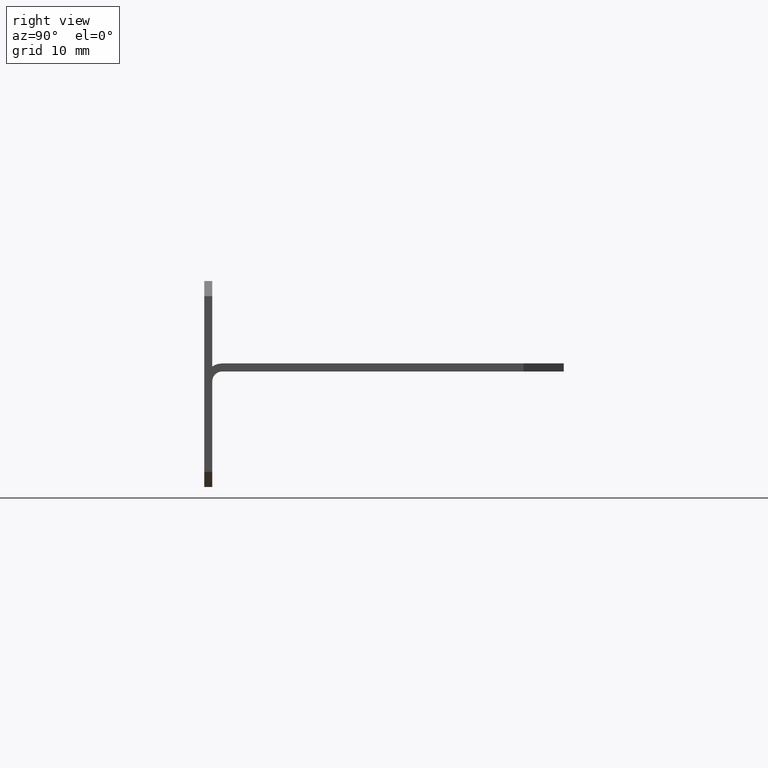
[diagram: clean part render]
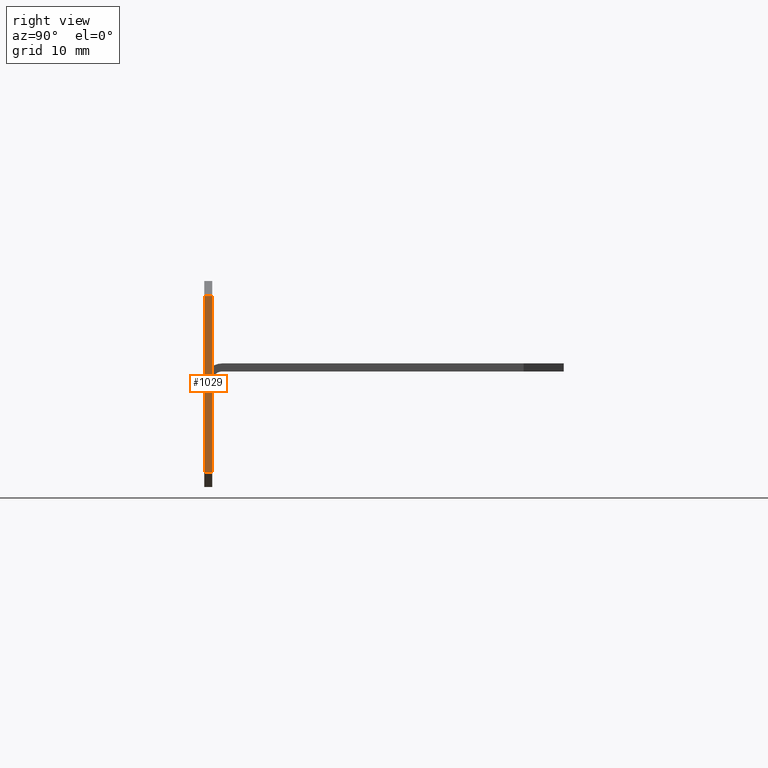
[diagram: same view with one face highlighted and labeled with its STEP entity id]
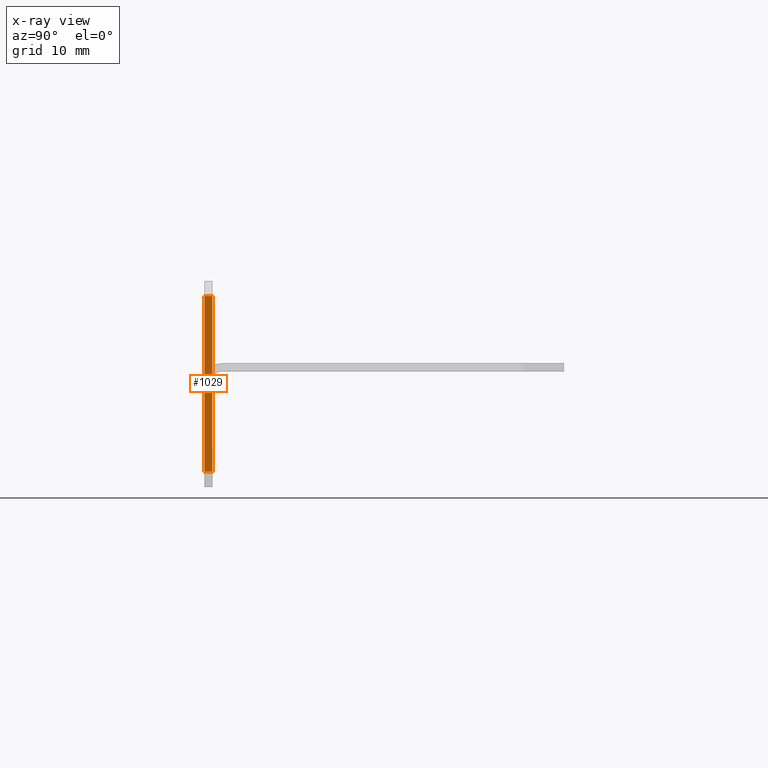
[diagram: x-ray of the same camera — body ghosted, the highlighted face saturated]
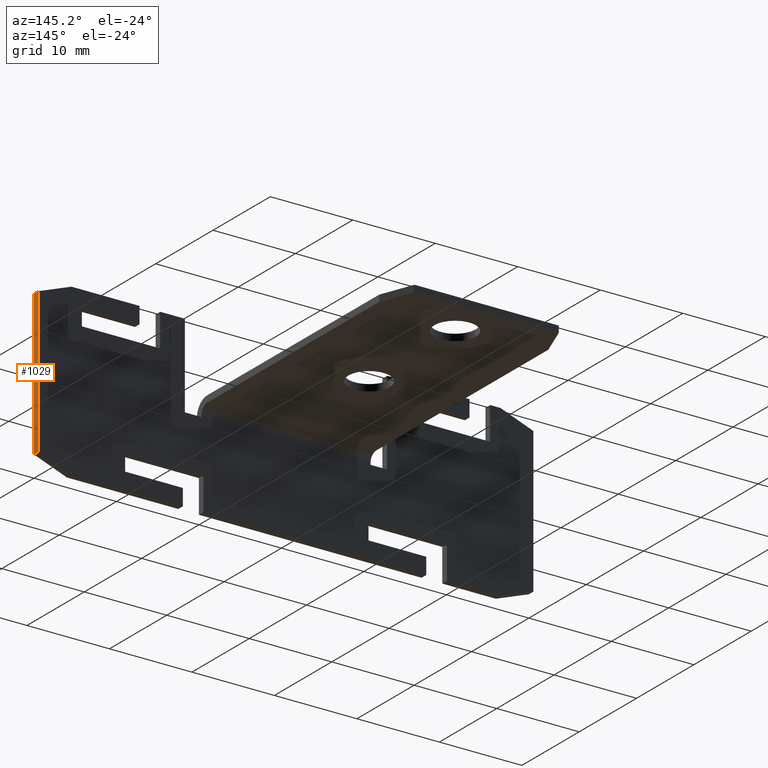
[diagram: same view with one face highlighted and labeled with its STEP entity id]
A machine part, right view. The second image highlights one B-rep face of the part: STEP entity #1029.
The next image is the same camera in x-ray: the body ghosted, the highlighted face saturated — about 0% of this face is hidden behind the body in this view.
A second angle (auxiliary view) of the same face is appended — the face is thin or edge-on in the first view.
In plain terms, the highlighted planar face has unit normal (1, 0, 0).
Its self-contained STEP definition (entity closure, byte-faithful):
#79=FACE_OUTER_BOUND('',#133,.T.);
#133=EDGE_LOOP('',(#927,#928,#929,#930));
#220=LINE('',#1540,#356);
#262=LINE('',#1640,#398);
#267=LINE('',#1648,#403);
#269=LINE('',#1651,#405);
#356=VECTOR('',#1245,10.);
#398=VECTOR('',#1343,10.);
#403=VECTOR('',#1352,10.);
#405=VECTOR('',#1356,10.);
#470=VERTEX_POINT('',#1537);
#471=VERTEX_POINT('',#1539);
#500=VERTEX_POINT('',#1637);
#501=VERTEX_POINT('',#1639);
#588=EDGE_CURVE('',#470,#471,#220,.T.);
#638=EDGE_CURVE('',#500,#501,#262,.T.);
#643=EDGE_CURVE('',#500,#471,#267,.T.);
#645=EDGE_CURVE('',#470,#501,#269,.T.);
#927=ORIENTED_EDGE('',*,*,#643,.T.);
#928=ORIENTED_EDGE('',*,*,#588,.F.);
#929=ORIENTED_EDGE('',*,*,#645,.T.);
#930=ORIENTED_EDGE('',*,*,#638,.F.);
#979=PLANE('',#1110);
#1029=ADVANCED_FACE('',(#79),#979,.T.);
#1110=AXIS2_PLACEMENT_3D('',#1655,#1362,#1363);
#1245=DIRECTION('',(0.,0.,1.));
#1343=DIRECTION('',(0.,0.,-1.));
#1352=DIRECTION('',(0.,-1.,0.));
#1356=DIRECTION('',(0.,1.,0.));
#1362=DIRECTION('center_axis',(1.,0.,0.));
#1363=DIRECTION('ref_axis',(0.,0.,-1.));
#1537=CARTESIAN_POINT('',(30.,-7.7715611723761E-15,-8.75));
#1539=CARTESIAN_POINT('',(30.,-7.7715611723761E-15,8.75));
#1540=CARTESIAN_POINT('',(30.,-7.7715611723761E-15,0.));
#1637=CARTESIAN_POINT('',(30.,0.799999999999992,8.75));
#1639=CARTESIAN_POINT('',(30.,0.799999999999992,-8.75));
#1640=CARTESIAN_POINT('',(30.,0.799999999999992,0.));
#1648=CARTESIAN_POINT('',(30.,0.799999999999992,8.75));
#1651=CARTESIAN_POINT('',(30.,0.799999999999992,-8.75));
#1655=CARTESIAN_POINT('Origin',(30.,0.799999999999992,0.));